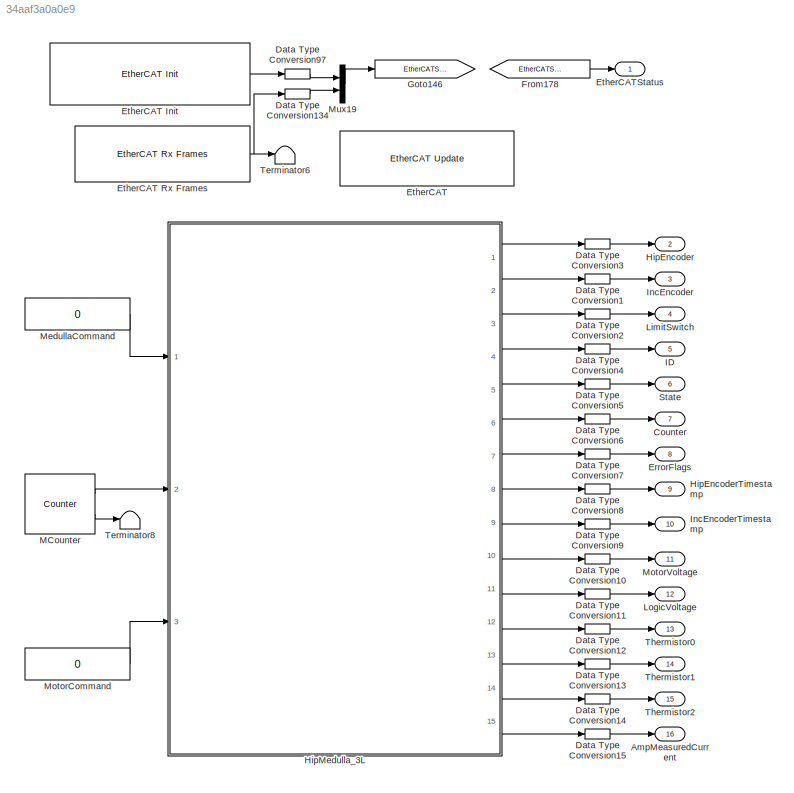
MODEL slx_34aaf3a0a0e9
KIND model
BLOCK [Outport] AmpMeasuredCurrent
  IconDisplay = Port number
  Port = 16
BLOCK [Outport] Counter
  IconDisplay = Port number
  Port = 7
BLOCK [DataTypeConversion] Data Type Conversion1
  OutDataTypeStr = double
  RndMeth = Floor
  SaturateOnIntegerOverflow = off
BLOCK [DataTypeConversion] Data Type Conversion10
  OutDataTypeStr = double
  RndMeth = Floor
  SaturateOnIntegerOverflow = off
BLOCK [DataTypeConversion] Data Type Conversion11
  OutDataTypeStr = double
  RndMeth = Floor
  SaturateOnIntegerOverflow = off
BLOCK [DataTypeConversion] Data Type Conversion12
  OutDataTypeStr = double
  RndMeth = Floor
  SaturateOnIntegerOverflow = off
BLOCK [DataTypeConversion] Data Type Conversion13
  OutDataTypeStr = double
  RndMeth = Floor
  SaturateOnIntegerOverflow = off
BLOCK [DataTypeConversion] Data Type Conversion134
  OutDataTypeStr = double
  RndMeth = Floor
  SaturateOnIntegerOverflow = off
BLOCK [DataTypeConversion] Data Type Conversion14
  OutDataTypeStr = double
  RndMeth = Floor
  SaturateOnIntegerOverflow = off
BLOCK [DataTypeConversion] Data Type Conversion15
  OutDataTypeStr = double
  RndMeth = Floor
  SaturateOnIntegerOverflow = off
BLOCK [DataTypeConversion] Data Type Conversion2
  OutDataTypeStr = double
  RndMeth = Floor
  SaturateOnIntegerOverflow = off
BLOCK [DataTypeConversion] Data Type Conversion3
  OutDataTypeStr = double
  RndMeth = Floor
  SaturateOnIntegerOverflow = off
BLOCK [DataTypeConversion] Data Type Conversion4
  OutDataTypeStr = double
  RndMeth = Floor
  SaturateOnIntegerOverflow = off
BLOCK [DataTypeConversion] Data Type Conversion5
  OutDataTypeStr = double
  RndMeth = Floor
  SaturateOnIntegerOverflow = off
BLOCK [DataTypeConversion] Data Type Conversion6
  OutDataTypeStr = double
  RndMeth = Floor
  SaturateOnIntegerOverflow = off
BLOCK [DataTypeConversion] Data Type Conversion7
  OutDataTypeStr = double
  RndMeth = Floor
  SaturateOnIntegerOverflow = off
BLOCK [DataTypeConversion] Data Type Conversion8
  OutDataTypeStr = double
  RndMeth = Floor
  SaturateOnIntegerOverflow = off
BLOCK [DataTypeConversion] Data Type Conversion9
  OutDataTypeStr = double
  RndMeth = Floor
  SaturateOnIntegerOverflow = off
BLOCK [DataTypeConversion] Data Type Conversion97
  OutDataTypeStr = double
  RndMeth = Floor
  SaturateOnIntegerOverflow = off
BLOCK [Outport] ErrorFlags
  IconDisplay = Port number
  Port = 8
BLOCK [Reference] EtherCAT  REF=xpcethercatlib/EtherCAT Update 
  Ports = []
  Priority = 4
  SourceBlock = xpcethercatlib/EtherCAT Update
  SourceType = xpcethercat_update
  device_id = 0
  task_id_list = [1]
  task_priorities = [1500]
  task_rates = [1]
BLOCK [Reference] EtherCAT Init   REF=xpcethercatlib/EtherCAT Init 
  Ports = [0, 1]
  Priority = 0
  SourceBlock = xpcethercatlib/EtherCAT Init
  SourceType = xpcethercatinit
  config_file = '20140605FullWithMicrostrainDC-eni.xml'
  device_id = 0
  enaDC = on
  errRptLevel = 0
  pci_bus = 10
  pci_slot = 0
  sample_time = -1
BLOCK [Reference] EtherCAT Rx Frames  REF=xpcethercatlib/EtherCAT Rx Frames 
  Ports = [0, 1]
  Priority = 1
  SourceBlock = xpcethercatlib/EtherCAT Rx Frames
  SourceType = xpcethercat_rcvframes
  device_id = 0
  sample_time = 0
BLOCK [Outport] EtherCATStatus
  IconDisplay = Port number
BLOCK [From] From178
  GotoTag = EtherCATStatus
BLOCK [Goto] Goto146
  GotoTag = EtherCATStatus
BLOCK [Outport] HipEncoder
  IconDisplay = Port number
  Port = 2
BLOCK [Outport] HipEncoderTimestamp
  IconDisplay = Port number
  Port = 9
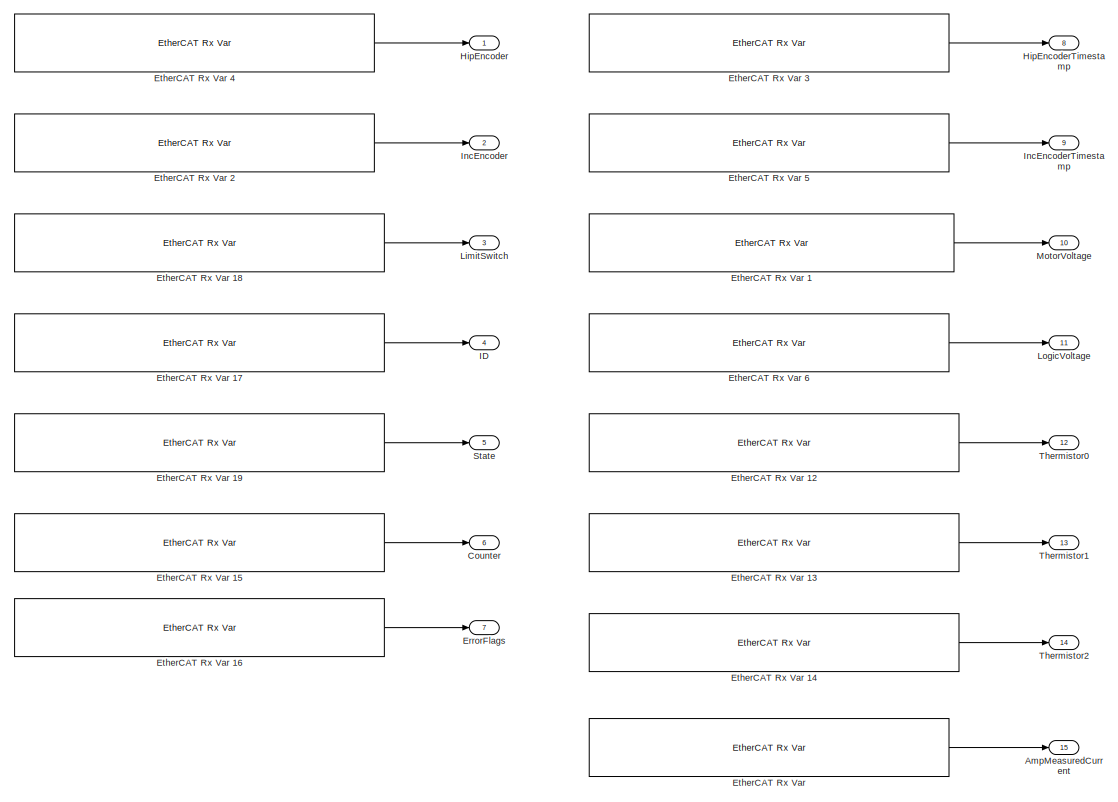
[diagram: HipMedulla_3L - part 1/2, left side, full height]
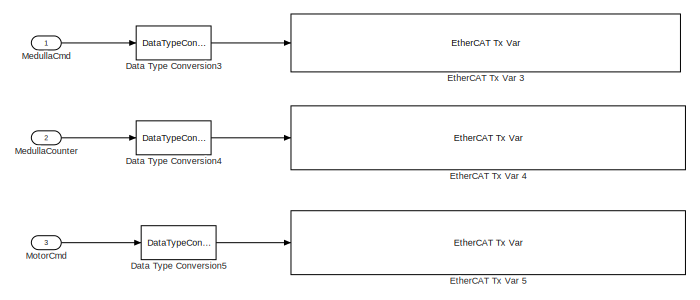
[diagram: HipMedulla_3L - part 2/2, top right region]
BLOCK [SubSystem] HipMedulla_3L
  FunctionWithSeparateData = off
  MaskHideContents = off
  MinAlgLoopOccurrences = off
  Opaque = off
  Ports = [3, 15]
  PropExecContextOutsideSubsystem = off
  RTWSystemCode = Auto
  RequestExecContextInheritance = off
BLOCK [Outport] HipMedulla_3L/AmpMeasuredCurrent
  IconDisplay = Port number
  Port = 15
BLOCK [Outport] HipMedulla_3L/Counter
  IconDisplay = Port number
  Port = 6
BLOCK [DataTypeConversion] HipMedulla_3L/Data Type Conversion3
  OutDataTypeStr = uint8
  RndMeth = Floor
  SaturateOnIntegerOverflow = off
BLOCK [DataTypeConversion] HipMedulla_3L/Data Type Conversion4
  OutDataTypeStr = uint16
  RndMeth = Floor
  SaturateOnIntegerOverflow = off
BLOCK [DataTypeConversion] HipMedulla_3L/Data Type Conversion5
  OutDataTypeStr = int32
  RndMeth = Floor
  SaturateOnIntegerOverflow = off
BLOCK [Outport] HipMedulla_3L/ErrorFlags
  IconDisplay = Port number
  Port = 7
BLOCK [Reference] HipMedulla_3L/EtherCAT Rx Var   REF=xpcethercatlib/EtherCAT Rx Var 
  Ports = [0, 1]
  Priority = 2
  SourceBlock = xpcethercatlib/EtherCAT Rx Var
  SourceType = xpcethercat_rx_var
  device_id = 0
  sample_time = 0.001000
  sig_dim = 1
  sig_name = Box 6 (ATRIAS 2.1 Hip (Medulla 1.5)).Measured Current.Amp Measured Current
  sig_offset = 2480
  sig_type = int16
  type_size = 16
BLOCK [Reference] HipMedulla_3L/EtherCAT Rx Var 1  REF=xpcethercatlib/EtherCAT Rx Var 
  Ports = [0, 1]
  Priority = 2
  SourceBlock = xpcethercatlib/EtherCAT Rx Var
  SourceType = xpcethercat_rx_var
  device_id = 0
  sample_time = 0.001000
  sig_dim = 1
  sig_name = Box 6 (ATRIAS 2.1 Hip (Medulla 1.5)).Power.Motor Voltage
  sig_offset = 2400
  sig_type = uint16
  type_size = 16
BLOCK [Reference] HipMedulla_3L/EtherCAT Rx Var 12  REF=xpcethercatlib/EtherCAT Rx Var 
  Ports = [0, 1]
  Priority = 2
  SourceBlock = xpcethercatlib/EtherCAT Rx Var
  SourceType = xpcethercat_rx_var
  device_id = 0
  sample_time = 0.001000
  sig_dim = 1
  sig_name = Box 6 (ATRIAS 2.1 Hip (Medulla 1.5)).Thermistors.Thermistor 0
  sig_offset = 2432
  sig_type = uint16
  type_size = 16
BLOCK [Reference] HipMedulla_3L/EtherCAT Rx Var 13  REF=xpcethercatlib/EtherCAT Rx Var 
  Ports = [0, 1]
  Priority = 2
  SourceBlock = xpcethercatlib/EtherCAT Rx Var
  SourceType = xpcethercat_rx_var
  device_id = 0
  sample_time = 0.001000
  sig_dim = 1
  sig_name = Box 6 (ATRIAS 2.1 Hip (Medulla 1.5)).Thermistors.Thermistor 1
  sig_offset = 2448
  sig_type = uint16
  type_size = 16
BLOCK [Reference] HipMedulla_3L/EtherCAT Rx Var 14  REF=xpcethercatlib/EtherCAT Rx Var 
  Ports = [0, 1]
  Priority = 2
  SourceBlock = xpcethercatlib/EtherCAT Rx Var
  SourceType = xpcethercat_rx_var
  device_id = 0
  sample_time = 0.001000
  sig_dim = 1
  sig_name = Box 6 (ATRIAS 2.1 Hip (Medulla 1.5)).Thermistors.Thermistor 2
  sig_offset = 2464
  sig_type = uint16
  type_size = 16
BLOCK [Reference] HipMedulla_3L/EtherCAT Rx Var 15  REF=xpcethercatlib/EtherCAT Rx Var 
  Ports = [0, 1]
  Priority = 2
  SourceBlock = xpcethercatlib/EtherCAT Rx Var
  SourceType = xpcethercat_rx_var
  device_id = 0
  sample_time = 0.001000
  sig_dim = 1
  sig_name = Box 6 (ATRIAS 2.1 Hip (Medulla 1.5)).uController Status.Counter
  sig_offset = 2328
  sig_type = uint8
  type_size = 8
BLOCK [Reference] HipMedulla_3L/EtherCAT Rx Var 16  REF=xpcethercatlib/EtherCAT Rx Var 
  Ports = [0, 1]
  Priority = 2
  SourceBlock = xpcethercatlib/EtherCAT Rx Var
  SourceType = xpcethercat_rx_var
  device_id = 0
  sample_time = 0.001000
  sig_dim = 1
  sig_name = Box 6 (ATRIAS 2.1 Hip (Medulla 1.5)).uController Status.Error Flags
  sig_offset = 2336
  sig_type = uint8
  type_size = 8
BLOCK [Reference] HipMedulla_3L/EtherCAT Rx Var 17  REF=xpcethercatlib/EtherCAT Rx Var 
  Ports = [0, 1]
  Priority = 2
  SourceBlock = xpcethercatlib/EtherCAT Rx Var
  SourceType = xpcethercat_rx_var
  device_id = 0
  sample_time = 0.001000
  sig_dim = 1
  sig_name = Box 6 (ATRIAS 2.1 Hip (Medulla 1.5)).uController Status.ID
  sig_offset = 2312
  sig_type = uint8
  type_size = 8
BLOCK [Reference] HipMedulla_3L/EtherCAT Rx Var 18  REF=xpcethercatlib/EtherCAT Rx Var 
  Ports = [0, 1]
  Priority = 2
  SourceBlock = xpcethercatlib/EtherCAT Rx Var
  SourceType = xpcethercat_rx_var
  device_id = 0
  sample_time = 0.001000
  sig_dim = 1
  sig_name = Box 6 (ATRIAS 2.1 Hip (Medulla 1.5)).uController Status.Limit Switch
  sig_offset = 2344
  sig_type = uint8
  type_size = 8
BLOCK [Reference] HipMedulla_3L/EtherCAT Rx Var 19  REF=xpcethercatlib/EtherCAT Rx Var 
  Ports = [0, 1]
  Priority = 2
  SourceBlock = xpcethercatlib/EtherCAT Rx Var
  SourceType = xpcethercat_rx_var
  device_id = 0
  sample_time = 0.001000
  sig_dim = 1
  sig_name = Box 6 (ATRIAS 2.1 Hip (Medulla 1.5)).uController Status.State
  sig_offset = 2320
  sig_type = uint8
  type_size = 8
BLOCK [Reference] HipMedulla_3L/EtherCAT Rx Var 2  REF=xpcethercatlib/EtherCAT Rx Var 
  Ports = [0, 1]
  Priority = 2
  SourceBlock = xpcethercatlib/EtherCAT Rx Var
  SourceType = xpcethercat_rx_var
  device_id = 0
  sample_time = 0.001000
  sig_dim = 1
  sig_name = Box 6 (ATRIAS 2.1 Hip (Medulla 1.5)).Incremental Encoder.Incremental Encoder
  sig_offset = 2496
  sig_type = uint16
  type_size = 16
BLOCK [Reference] HipMedulla_3L/EtherCAT Rx Var 3  REF=xpcethercatlib/EtherCAT Rx Var 
  Ports = [0, 1]
  Priority = 2
  SourceBlock = xpcethercatlib/EtherCAT Rx Var
  SourceType = xpcethercat_rx_var
  device_id = 0
  sample_time = 0.001000
  sig_dim = 1
  sig_name = Box 6 (ATRIAS 2.1 Hip (Medulla 1.5)).Hip Encoder.Timestamp
  sig_offset = 2384
  sig_type = uint16
  type_size = 16
BLOCK [Reference] HipMedulla_3L/EtherCAT Rx Var 4  REF=xpcethercatlib/EtherCAT Rx Var 
  Ports = [0, 1]
  Priority = 2
  SourceBlock = xpcethercatlib/EtherCAT Rx Var
  SourceType = xpcethercat_rx_var
  device_id = 0
  sample_time = 0.001000
  sig_dim = 1
  sig_name = Box 6 (ATRIAS 2.1 Hip (Medulla 1.5)).Hip Encoder.Encoder
  sig_offset = 2352
  sig_type = uint32
  type_size = 32
BLOCK [Reference] HipMedulla_3L/EtherCAT Rx Var 5  REF=xpcethercatlib/EtherCAT Rx Var 
  Ports = [0, 1]
  Priority = 2
  SourceBlock = xpcethercatlib/EtherCAT Rx Var
  SourceType = xpcethercat_rx_var
  device_id = 0
  sample_time = 0.001000
  sig_dim = 1
  sig_name = Box 6 (ATRIAS 2.1 Hip (Medulla 1.5)).Incremental Encoder.Incremental Encoder Timestamp
  sig_offset = 2512
  sig_type = uint16
  type_size = 16
BLOCK [Reference] HipMedulla_3L/EtherCAT Rx Var 6  REF=xpcethercatlib/EtherCAT Rx Var 
  Ports = [0, 1]
  Priority = 2
  SourceBlock = xpcethercatlib/EtherCAT Rx Var
  SourceType = xpcethercat_rx_var
  device_id = 0
  sample_time = 0.001000
  sig_dim = 1
  sig_name = Box 6 (ATRIAS 2.1 Hip (Medulla 1.5)).Power.Logic Voltage
  sig_offset = 2416
  sig_type = uint16
  type_size = 16
BLOCK [Reference] HipMedulla_3L/EtherCAT Tx Var 3  REF=xpcethercatlib/EtherCAT Tx Var 
  Ports = [1]
  Priority = 3
  SourceBlock = xpcethercatlib/EtherCAT Tx Var
  SourceType = xpcethercat_tx_var
  device_id = 0
  sample_time = 0.001000
  sig_dim = 1
  sig_name = Box 6 (ATRIAS 2.1 Hip (Medulla 1.5)).uControllerInput.Command
  sig_offset = 2312
  sig_type = uint8
  type_size = 8
BLOCK [Reference] HipMedulla_3L/EtherCAT Tx Var 4  REF=xpcethercatlib/EtherCAT Tx Var 
  Ports = [1]
  Priority = 3
  SourceBlock = xpcethercatlib/EtherCAT Tx Var
  SourceType = xpcethercat_tx_var
  device_id = 0
  sample_time = 0.001000
  sig_dim = 1
  sig_name = Box 6 (ATRIAS 2.1 Hip (Medulla 1.5)).uControllerInput.Counter
  sig_offset = 2320
  sig_type = uint16
  type_size = 16
BLOCK [Reference] HipMedulla_3L/EtherCAT Tx Var 5  REF=xpcethercatlib/EtherCAT Tx Var 
  Ports = [1]
  Priority = 3
  SourceBlock = xpcethercatlib/EtherCAT Tx Var
  SourceType = xpcethercat_tx_var
  device_id = 0
  sample_time = 0.001000
  sig_dim = 1
  sig_name = Box 6 (ATRIAS 2.1 Hip (Medulla 1.5)).uControllerInput.Motor Current
  sig_offset = 2336
  sig_type = int32
  type_size = 32
BLOCK [Outport] HipMedulla_3L/HipEncoder
  IconDisplay = Port number
BLOCK [Outport] HipMedulla_3L/HipEncoderTimestamp
  IconDisplay = Port number
  Port = 8
BLOCK [Outport] HipMedulla_3L/ID
  IconDisplay = Port number
  Port = 4
BLOCK [Outport] HipMedulla_3L/IncEncoder
  IconDisplay = Port number
  Port = 2
BLOCK [Outport] HipMedulla_3L/IncEncoderTimestamp
  IconDisplay = Port number
  Port = 9
BLOCK [Outport] HipMedulla_3L/LimitSwitch
  IconDisplay = Port number
  Port = 3
BLOCK [Outport] HipMedulla_3L/LogicVoltage
  IconDisplay = Port number
  Port = 11
BLOCK [Inport] HipMedulla_3L/MedullaCmd
  IconDisplay = Port number
BLOCK [Inport] HipMedulla_3L/MedullaCounter
  IconDisplay = Port number
  Port = 2
BLOCK [Inport] HipMedulla_3L/MotorCmd
  IconDisplay = Port number
  Port = 3
BLOCK [Outport] HipMedulla_3L/MotorVoltage
  IconDisplay = Port number
  Port = 10
BLOCK [Outport] HipMedulla_3L/State
  IconDisplay = Port number
  Port = 5
BLOCK [Outport] HipMedulla_3L/Thermistor0
  IconDisplay = Port number
  Port = 12
BLOCK [Outport] HipMedulla_3L/Thermistor1
  IconDisplay = Port number
  Port = 13
BLOCK [Outport] HipMedulla_3L/Thermistor2
  IconDisplay = Port number
  Port = 14
BLOCK [Outport] ID
  IconDisplay = Port number
  Port = 5
BLOCK [Outport] IncEncoder
  IconDisplay = Port number
  Port = 3
BLOCK [Outport] IncEncoderTimestamp
  IconDisplay = Port number
  Port = 10
BLOCK [Outport] LimitSwitch
  IconDisplay = Port number
  Port = 4
BLOCK [Outport] LogicVoltage
  IconDisplay = Port number
  Port = 12
BLOCK [Reference] MCounter  REF=dspswit3/Counter
  CntDtype = double
  CountEvent = Free running
  CounterSize = User defined
  Direction = Up
  HitDtype = Logical
  HitValue = 32
  InitialCount = 0
  MaxCount = 65535
  Output = Count and Hit
  Ports = [0, 2]
  ResetInput = off
  SamplesPerFrame = 1
  SourceBlock = dspswit3/Counter
  SourceType = Counter
  Ts = .001
BLOCK [Constant] MedullaCommand
  Value = 0
BLOCK [Constant] MotorCommand
  Value = 0
BLOCK [Outport] MotorVoltage
  IconDisplay = Port number
  Port = 11
BLOCK [Mux] Mux19
  DisplayOption = bar
  Inputs = 2
  Ports = [2, 1]
BLOCK [Outport] State
  IconDisplay = Port number
  Port = 6
BLOCK [Terminator] Terminator6
BLOCK [Terminator] Terminator8
BLOCK [Outport] Thermistor0
  IconDisplay = Port number
  Port = 13
BLOCK [Outport] Thermistor1
  IconDisplay = Port number
  Port = 14
BLOCK [Outport] Thermistor2
  IconDisplay = Port number
  Port = 15
LINE Data Type Conversion10:1 -> MotorVoltage:1
LINE Data Type Conversion11:1 -> LogicVoltage:1
LINE Data Type Conversion12:1 -> Thermistor0:1
LINE Data Type Conversion134:1 -> Mux19:2
LINE Data Type Conversion13:1 -> Thermistor1:1
LINE Data Type Conversion14:1 -> Thermistor2:1
LINE Data Type Conversion15:1 -> AmpMeasuredCurrent:1
LINE Data Type Conversion1:1 -> IncEncoder:1
LINE Data Type Conversion2:1 -> LimitSwitch:1
LINE Data Type Conversion3:1 -> HipEncoder:1
LINE Data Type Conversion4:1 -> ID:1
LINE Data Type Conversion5:1 -> State:1
LINE Data Type Conversion6:1 -> Counter:1
LINE Data Type Conversion7:1 -> ErrorFlags:1
LINE Data Type Conversion8:1 -> HipEncoderTimestamp:1
LINE Data Type Conversion97:1 -> Mux19:1
LINE Data Type Conversion9:1 -> IncEncoderTimestamp:1
LINE EtherCAT Init :1 -> Data Type Conversion97:1
NET EtherCAT Rx Frames:1 -> Data Type Conversion134:1, Terminator6:1
LINE From178:1 -> EtherCATStatus:1
LINE HipMedulla_3L/Data Type Conversion3:1 -> HipMedulla_3L/EtherCAT Tx Var 3:1
LINE HipMedulla_3L/Data Type Conversion4:1 -> HipMedulla_3L/EtherCAT Tx Var 4:1
LINE HipMedulla_3L/Data Type Conversion5:1 -> HipMedulla_3L/EtherCAT Tx Var 5:1
LINE HipMedulla_3L/EtherCAT Rx Var 12:1 -> HipMedulla_3L/Thermistor0:1
LINE HipMedulla_3L/EtherCAT Rx Var 13:1 -> HipMedulla_3L/Thermistor1:1
LINE HipMedulla_3L/EtherCAT Rx Var 14:1 -> HipMedulla_3L/Thermistor2:1
LINE HipMedulla_3L/EtherCAT Rx Var 15:1 -> HipMedulla_3L/Counter:1
LINE HipMedulla_3L/EtherCAT Rx Var 16:1 -> HipMedulla_3L/ErrorFlags:1
LINE HipMedulla_3L/EtherCAT Rx Var 17:1 -> HipMedulla_3L/ID:1
LINE HipMedulla_3L/EtherCAT Rx Var 18:1 -> HipMedulla_3L/LimitSwitch:1
LINE HipMedulla_3L/EtherCAT Rx Var 19:1 -> HipMedulla_3L/State:1
LINE HipMedulla_3L/EtherCAT Rx Var 1:1 -> HipMedulla_3L/MotorVoltage:1
LINE HipMedulla_3L/EtherCAT Rx Var 2:1 -> HipMedulla_3L/IncEncoder:1
LINE HipMedulla_3L/EtherCAT Rx Var 3:1 -> HipMedulla_3L/HipEncoderTimestamp:1
LINE HipMedulla_3L/EtherCAT Rx Var 4:1 -> HipMedulla_3L/HipEncoder:1
LINE HipMedulla_3L/EtherCAT Rx Var 5:1 -> HipMedulla_3L/IncEncoderTimestamp:1
LINE HipMedulla_3L/EtherCAT Rx Var 6:1 -> HipMedulla_3L/LogicVoltage:1
LINE HipMedulla_3L/EtherCAT Rx Var :1 -> HipMedulla_3L/AmpMeasuredCurrent:1
LINE HipMedulla_3L/MedullaCmd:1 -> HipMedulla_3L/Data Type Conversion3:1
LINE HipMedulla_3L/MedullaCounter:1 -> HipMedulla_3L/Data Type Conversion4:1
LINE HipMedulla_3L/MotorCmd:1 -> HipMedulla_3L/Data Type Conversion5:1
LINE HipMedulla_3L:1 -> Data Type Conversion3:1
LINE HipMedulla_3L:10 -> Data Type Conversion10:1
LINE HipMedulla_3L:11 -> Data Type Conversion11:1
LINE HipMedulla_3L:12 -> Data Type Conversion12:1
LINE HipMedulla_3L:13 -> Data Type Conversion13:1
LINE HipMedulla_3L:14 -> Data Type Conversion14:1
LINE HipMedulla_3L:15 -> Data Type Conversion15:1
LINE HipMedulla_3L:2 -> Data Type Conversion1:1
LINE HipMedulla_3L:3 -> Data Type Conversion2:1
LINE HipMedulla_3L:4 -> Data Type Conversion4:1
LINE HipMedulla_3L:5 -> Data Type Conversion5:1
LINE HipMedulla_3L:6 -> Data Type Conversion6:1
LINE HipMedulla_3L:7 -> Data Type Conversion7:1
LINE HipMedulla_3L:8 -> Data Type Conversion8:1
LINE HipMedulla_3L:9 -> Data Type Conversion9:1
LINE MCounter:1 -> HipMedulla_3L:2
LINE MCounter:2 -> Terminator8:1
LINE MedullaCommand:1 -> HipMedulla_3L:1
LINE MotorCommand:1 -> HipMedulla_3L:3
LINE Mux19:1 -> Goto146:1
note: NET lines group one-source signal fan-out (src -> all destinations, sorted); 1:1 wires keep LINE
